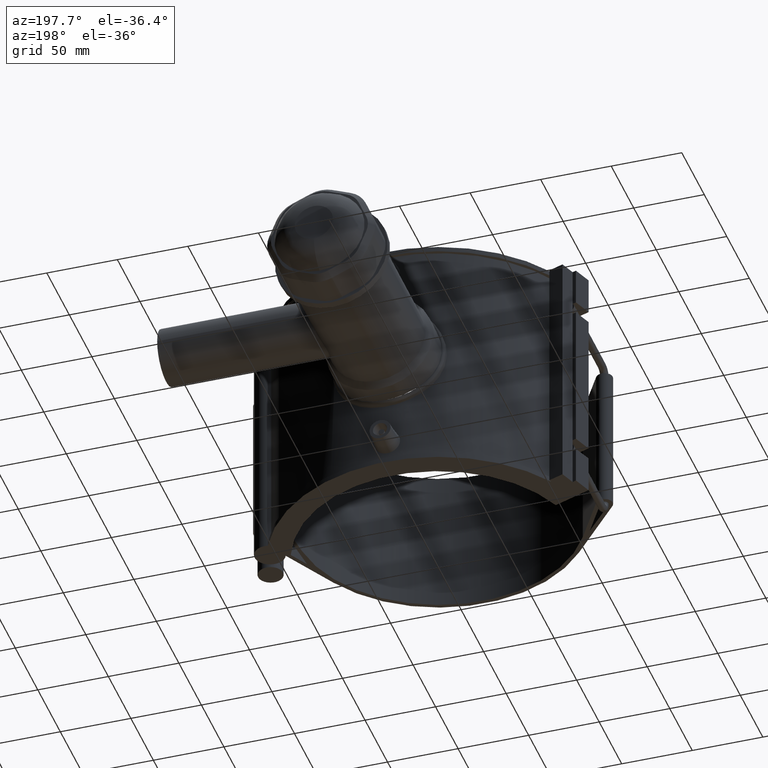
[diagram: clean part render]
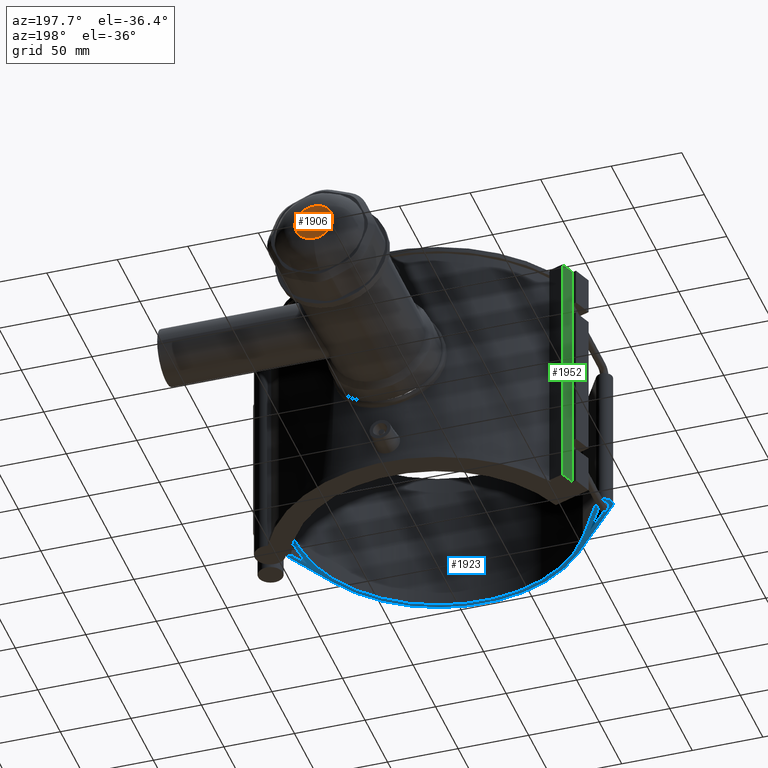
[diagram: same view with three faces highlighted in distinct colors, each labeled with its STEP entity id]
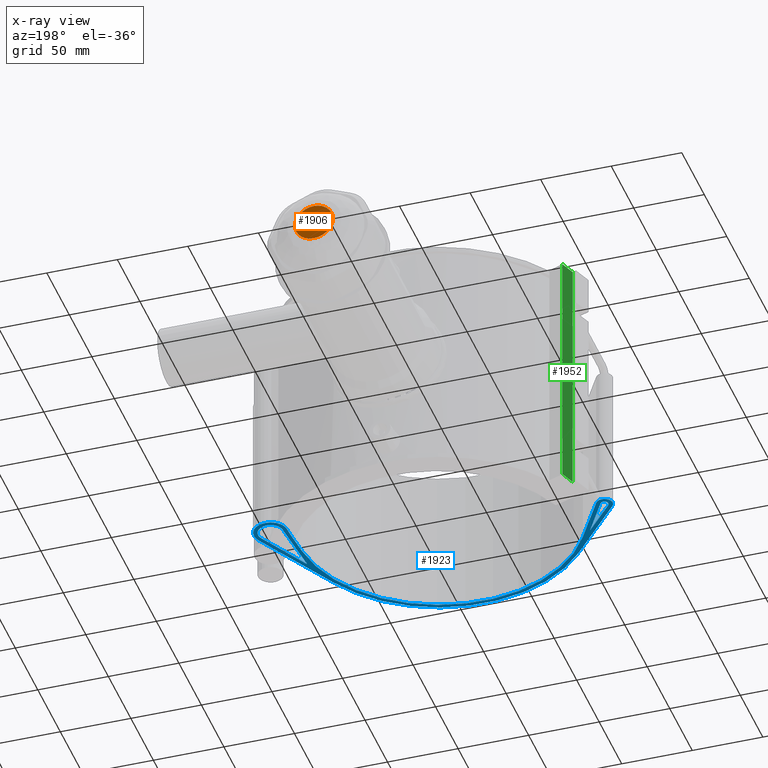
[diagram: x-ray of the same camera — body ghosted, the three highlighted faces saturated]
A machine part, auxiliary view with three faces highlighted in distinct colors.
The next image is the same camera in x-ray (body ghosted, the three faces saturated) — at least one of them is partly hidden behind the body in this view.
Their STEP definitions:

[orange] entity #1906 — the highlighted planar face has unit normal (0, 1, 0).
#485=FACE_OUTER_BOUND('',#614,.T.);
#614=EDGE_LOOP('',(#1397));
#759=CIRCLE('',#2054,13.5043815999573);
#870=VERTEX_POINT('',#3237);
#1072=EDGE_CURVE('',#870,#870,#759,.T.);
#1397=ORIENTED_EDGE('',*,*,#1072,.F.);
#1820=PLANE('',#2055);
#1906=ADVANCED_FACE('',(#485),#1820,.T.);
#2054=AXIS2_PLACEMENT_3D('',#3238,#2371,#2372);
#2055=AXIS2_PLACEMENT_3D('',#3242,#2373,#2374);
#2371=DIRECTION('center_axis',(0.,-1.,-3.06161699786838E-16));
#2372=DIRECTION('ref_axis',(-6.12323399573676E-17,-3.28848238301759E-16,
1.));
#2373=DIRECTION('center_axis',(0.,1.,3.06161699786838E-16));
#2374=DIRECTION('ref_axis',(0.,0.,1.));
#3237=CARTESIAN_POINT('',(2.48071465512781E-15,277.,-13.5043815999572));
#3238=CARTESIAN_POINT('Origin',(0.,277.,5.41906208622704E-14));
#3242=CARTESIAN_POINT('Origin',(0.,277.,5.41906208622704E-14));

[blue] entity #1923 — the highlighted planar face has unit normal (0, 0, 1).
#95=LINE('',#3321,#256);
#99=LINE('',#3329,#260);
#102=LINE('',#3340,#263);
#103=LINE('',#3344,#264);
#104=LINE('',#3348,#265);
#105=LINE('',#3352,#266);
#106=LINE('',#3358,#267);
#107=LINE('',#3359,#268);
#256=VECTOR('',#2430,42.3357405477701);
#260=VECTOR('',#2436,42.3357405477701);
#263=VECTOR('',#2445,69.8614012500134);
#264=VECTOR('',#2448,57.6362723718396);
#265=VECTOR('',#2451,39.7006283693455);
#266=VECTOR('',#2454,18.7376487946892);
#267=VECTOR('',#2459,31.6910839622462);
#268=VECTOR('',#2460,31.6910839622462);
#374=FACE_BOUND('',#637,.T.);
#375=FACE_BOUND('',#638,.T.);
#502=FACE_OUTER_BOUND('',#636,.T.);
#636=EDGE_LOOP('',(#1467,#1468,#1469,#1470,#1471,#1472,#1473,#1474,#1475,
#1476));
#637=EDGE_LOOP('',(#1477,#1478,#1479));
#638=EDGE_LOOP('',(#1480,#1481,#1482));
#767=CIRCLE('',#2080,11.8461538461538);
#768=CIRCLE('',#2081,11.8461538461538);
#769=CIRCLE('',#2082,103.);
#770=CIRCLE('',#2083,5.80000000000001);
#771=CIRCLE('',#2084,100.);
#772=CIRCLE('',#2085,100.);
#773=CIRCLE('',#2086,2.8);
#774=CIRCLE('',#2087,8.84615384615381);
#882=VERTEX_POINT('',#3319);
#883=VERTEX_POINT('',#3320);
#886=VERTEX_POINT('',#3328);
#888=VERTEX_POINT('',#3334);
#889=VERTEX_POINT('',#3335);
#890=VERTEX_POINT('',#3337);
#891=VERTEX_POINT('',#3339);
#892=VERTEX_POINT('',#3341);
#893=VERTEX_POINT('',#3343);
#894=VERTEX_POINT('',#3345);
#895=VERTEX_POINT('',#3347);
#896=VERTEX_POINT('',#3349);
#897=VERTEX_POINT('',#3351);
#898=VERTEX_POINT('',#3354);
#899=VERTEX_POINT('',#3355);
#900=VERTEX_POINT('',#3357);
#1095=EDGE_CURVE('',#882,#883,#95,.T.);
#1099=EDGE_CURVE('',#883,#886,#99,.T.);
#1102=EDGE_CURVE('',#888,#889,#767,.T.);
#1103=EDGE_CURVE('',#889,#890,#768,.T.);
#1104=EDGE_CURVE('',#890,#891,#102,.T.);
#1105=EDGE_CURVE('',#891,#892,#769,.T.);
#1106=EDGE_CURVE('',#892,#893,#103,.T.);
#1107=EDGE_CURVE('',#893,#894,#770,.T.);
#1108=EDGE_CURVE('',#894,#895,#104,.T.);
#1109=EDGE_CURVE('',#895,#896,#771,.T.);
#1110=EDGE_CURVE('',#896,#897,#105,.T.);
#1111=EDGE_CURVE('',#888,#897,#772,.T.);
#1112=EDGE_CURVE('',#898,#899,#773,.T.);
#1113=EDGE_CURVE('',#899,#900,#106,.T.);
#1114=EDGE_CURVE('',#900,#898,#107,.T.);
#1115=EDGE_CURVE('',#882,#886,#774,.T.);
#1467=ORIENTED_EDGE('',*,*,#1102,.T.);
#1468=ORIENTED_EDGE('',*,*,#1103,.T.);
#1469=ORIENTED_EDGE('',*,*,#1104,.T.);
#1470=ORIENTED_EDGE('',*,*,#1105,.T.);
#1471=ORIENTED_EDGE('',*,*,#1106,.T.);
#1472=ORIENTED_EDGE('',*,*,#1107,.T.);
#1473=ORIENTED_EDGE('',*,*,#1108,.T.);
#1474=ORIENTED_EDGE('',*,*,#1109,.T.);
#1475=ORIENTED_EDGE('',*,*,#1110,.T.);
#1476=ORIENTED_EDGE('',*,*,#1111,.F.);
#1477=ORIENTED_EDGE('',*,*,#1112,.T.);
#1478=ORIENTED_EDGE('',*,*,#1113,.T.);
#1479=ORIENTED_EDGE('',*,*,#1114,.T.);
#1480=ORIENTED_EDGE('',*,*,#1095,.T.);
#1481=ORIENTED_EDGE('',*,*,#1099,.T.);
#1482=ORIENTED_EDGE('',*,*,#1115,.F.);
#1829=PLANE('',#2079);
#1923=ADVANCED_FACE('',(#502,#374,#375),#1829,.F.);
#2079=AXIS2_PLACEMENT_3D('',#3333,#2439,#2440);
#2080=AXIS2_PLACEMENT_3D('',#3336,#2441,#2442);
#2081=AXIS2_PLACEMENT_3D('',#3338,#2443,#2444);
#2082=AXIS2_PLACEMENT_3D('',#3342,#2446,#2447);
#2083=AXIS2_PLACEMENT_3D('',#3346,#2449,#2450);
#2084=AXIS2_PLACEMENT_3D('',#3350,#2452,#2453);
#2085=AXIS2_PLACEMENT_3D('',#3353,#2455,#2456);
#2086=AXIS2_PLACEMENT_3D('',#3356,#2457,#2458);
#2087=AXIS2_PLACEMENT_3D('',#3360,#2461,#2462);
#2430=DIRECTION('',(-0.0905873526607487,-0.995888513608786,0.));
#2436=DIRECTION('',(0.481783564841131,0.876290246806942,0.));
#2439=DIRECTION('center_axis',(0.,0.,1.));
#2440=DIRECTION('ref_axis',(1.,0.,0.));
#2441=DIRECTION('center_axis',(0.,0.,-1.));
#2442=DIRECTION('ref_axis',(0.333937766224137,-0.942595124265574,0.));
#2443=DIRECTION('center_axis',(0.,0.,-1.));
#2444=DIRECTION('ref_axis',(0.333937766224137,-0.942595124265574,0.));
#2445=DIRECTION('',(-0.48178356484113,-0.876290246806943,0.));
#2446=DIRECTION('center_axis',(0.,0.,-1.));
#2447=DIRECTION('ref_axis',(0.988586012507429,0.150657545030644,0.));
#2448=DIRECTION('',(-0.654222560450905,0.756302083427689,0.));
#2449=DIRECTION('center_axis',(0.,0.,-1.));
#2450=DIRECTION('ref_axis',(-1.,0.,0.));
#2451=DIRECTION('',(0.511479804338621,-0.859295298342617,0.));
#2452=DIRECTION('center_axis',(0.,0.,1.));
#2453=DIRECTION('ref_axis',(0.859295298342617,0.511479804338621,0.));
#2454=DIRECTION('',(0.0905873526607489,0.995888513608786,0.));
#2455=DIRECTION('center_axis',(0.,0.,-1.));
#2456=DIRECTION('ref_axis',(0.998677892414806,-0.0514049336340508,0.));
#2457=DIRECTION('center_axis',(0.,0.,1.));
#2458=DIRECTION('ref_axis',(0.,-1.,0.));
#2459=DIRECTION('',(0.654222560450906,-0.756302083427688,0.));
#2460=DIRECTION('',(-0.511479804338621,0.859295298342617,0.));
#2461=DIRECTION('center_axis',(0.,0.,-1.));
#2462=DIRECTION('ref_axis',(1.,0.,0.));
#3319=CARTESIAN_POINT('',(104.725518277583,18.1037892528259,-52.8));
#3320=CARTESIAN_POINT('',(100.890435618428,-24.05788847382,-52.8));
#3321=CARTESIAN_POINT('',(98.9305788539803,-45.6039297555643,-52.8));
#3328=CARTESIAN_POINT('',(121.287099619722,13.0405080595401,-52.8));
#3329=CARTESIAN_POINT('',(93.0910545803784,-38.2437636956699,-52.8));
#3333=CARTESIAN_POINT('Origin',(9.76503148421383,-59.2176246542159,-52.8));
#3334=CARTESIAN_POINT('',(101.690020868822,17.4462897461497,-52.8));
#3335=CARTESIAN_POINT('',(110.177502823399,28.6627455084343,-52.8));
#3336=CARTESIAN_POINT('Origin',(113.535301282584,17.3024395946731,-52.8));
#3337=CARTESIAN_POINT('',(123.915970360143,11.5951573650167,-52.8));
#3338=CARTESIAN_POINT('Origin',(113.535301282584,17.3024395946731,-52.8));
#3339=CARTESIAN_POINT('',(90.2578954211151,-49.6237071786365,-52.8));
#3340=CARTESIAN_POINT('',(90.2578954211151,-49.6237071786365,-52.8));
#3341=CARTESIAN_POINT('',(-77.8991145930519,-67.3849237264432,-52.8));
#3342=CARTESIAN_POINT('Origin',(0.,0.,-52.8));
#3343=CARTESIAN_POINT('',(-115.606064279003,-23.7944908506153,-52.8));
#3344=CARTESIAN_POINT('',(-115.606064279003,-23.7944908506153,-52.8));
#3345=CARTESIAN_POINT('',(-106.235599464735,-17.033417134836,-52.8));
#3346=CARTESIAN_POINT('Origin',(-111.219512195122,-20.,-52.8));
#3347=CARTESIAN_POINT('',(-85.9295298342617,-51.1479804338621,-52.8));
#3348=CARTESIAN_POINT('',(-85.9295298342617,-51.1479804338621,-52.8));
#3349=CARTESIAN_POINT('',(99.5888513608786,-9.05873526607498,-52.8));
#3350=CARTESIAN_POINT('Origin',(0.,0.,-52.8));
#3351=CARTESIAN_POINT('',(101.286245360276,9.60187394059154,-52.8));
#3352=CARTESIAN_POINT('',(101.824359288265,15.5177271381563,-52.8));
#3353=CARTESIAN_POINT('Origin',(1.69739399939777,18.6606092066664,-52.8));
#3354=CARTESIAN_POINT('',(-108.813485359763,-18.5678565478519,-52.8));
#3355=CARTESIAN_POINT('',(-113.337158028719,-21.8318231692625,-52.8));
#3356=CARTESIAN_POINT('Origin',(-111.219512195122,-20.,-52.8));
#3357=CARTESIAN_POINT('',(-92.6041359354741,-45.7998559959911,-52.8));
#3358=CARTESIAN_POINT('',(-77.7437906351754,-62.9788877055131,-52.8));
#3359=CARTESIAN_POINT('',(-76.265019143956,-73.2498669620689,-52.8));
#3360=CARTESIAN_POINT('Origin',(113.535301282584,17.3024395946731,-52.8));

[green] entity #1952 — the highlighted planar face has unit normal (-0.9397, 0.342, 0).
#116=LINE('',#3414,#277);
#117=LINE('',#3418,#278);
#127=LINE('',#3460,#288);
#128=LINE('',#3462,#289);
#130=LINE('',#3466,#291);
#148=LINE('',#3509,#309);
#152=LINE('',#3522,#313);
#155=LINE('',#3527,#316);
#174=LINE('',#3564,#335);
#175=LINE('',#3567,#336);
#176=LINE('',#3569,#337);
#177=LINE('',#3570,#338);
#277=VECTOR('',#2503,4.53640788952946);
#278=VECTOR('',#2506,4.53640788952949);
#288=VECTOR('',#2538,3.69179605523528);
#289=VECTOR('',#2541,0.17179605523526);
#291=VECTOR('',#2545,0.171796055235252);
#309=VECTOR('',#2585,3.69179605523522);
#313=VECTOR('',#2601,26.6);
#316=VECTOR('',#2606,106.);
#335=VECTOR('',#2637,26.6);
#336=VECTOR('',#2640,11.2);
#337=VECTOR('',#2641,176.);
#338=VECTOR('',#2642,11.2);
#531=FACE_OUTER_BOUND('',#673,.T.);
#673=EDGE_LOOP('',(#1635,#1636,#1637,#1638,#1639,#1640,#1641,#1642,#1643,
#1644,#1645,#1646));
#919=VERTEX_POINT('',#3406);
#920=VERTEX_POINT('',#3408);
#922=VERTEX_POINT('',#3416);
#923=VERTEX_POINT('',#3417);
#931=VERTEX_POINT('',#3446);
#936=VERTEX_POINT('',#3458);
#937=VERTEX_POINT('',#3464);
#951=VERTEX_POINT('',#3505);
#954=VERTEX_POINT('',#3521);
#967=VERTEX_POINT('',#3562);
#968=VERTEX_POINT('',#3566);
#969=VERTEX_POINT('',#3568);
#1138=EDGE_CURVE('',#920,#919,#116,.T.);
#1139=EDGE_CURVE('',#922,#923,#117,.T.);
#1157=EDGE_CURVE('',#919,#936,#127,.T.);
#1158=EDGE_CURVE('',#931,#920,#128,.T.);
#1160=EDGE_CURVE('',#923,#937,#130,.T.);
#1182=EDGE_CURVE('',#951,#922,#148,.T.);
#1188=EDGE_CURVE('',#954,#931,#152,.T.);
#1191=EDGE_CURVE('',#936,#951,#155,.T.);
#1210=EDGE_CURVE('',#937,#967,#174,.T.);
#1211=EDGE_CURVE('',#967,#968,#175,.T.);
#1212=EDGE_CURVE('',#969,#968,#176,.T.);
#1213=EDGE_CURVE('',#954,#969,#177,.T.);
#1635=ORIENTED_EDGE('',*,*,#1211,.T.);
#1636=ORIENTED_EDGE('',*,*,#1212,.F.);
#1637=ORIENTED_EDGE('',*,*,#1213,.F.);
#1638=ORIENTED_EDGE('',*,*,#1188,.T.);
#1639=ORIENTED_EDGE('',*,*,#1158,.T.);
#1640=ORIENTED_EDGE('',*,*,#1138,.T.);
#1641=ORIENTED_EDGE('',*,*,#1157,.T.);
#1642=ORIENTED_EDGE('',*,*,#1191,.T.);
#1643=ORIENTED_EDGE('',*,*,#1182,.T.);
#1644=ORIENTED_EDGE('',*,*,#1139,.T.);
#1645=ORIENTED_EDGE('',*,*,#1160,.T.);
#1646=ORIENTED_EDGE('',*,*,#1210,.T.);
#1852=PLANE('',#2142);
#1952=ADVANCED_FACE('',(#531),#1852,.T.);
#2142=AXIS2_PLACEMENT_3D('',#3565,#2638,#2639);
#2503=DIRECTION('',(0.,0.,1.));
#2506=DIRECTION('',(0.,0.,1.));
#2538=DIRECTION('',(0.,0.,1.));
#2541=DIRECTION('',(0.,0.,1.));
#2545=DIRECTION('',(0.,0.,1.));
#2585=DIRECTION('',(0.,0.,1.));
#2601=DIRECTION('',(0.,0.,1.));
#2606=DIRECTION('',(0.,0.,1.));
#2637=DIRECTION('',(0.,0.,1.));
#2638=DIRECTION('center_axis',(-0.939692620785908,0.34202014332567,0.));
#2639=DIRECTION('ref_axis',(-0.342020143325671,-0.939692620785908,0.));
#2640=DIRECTION('',(0.34202014332567,0.939692620785908,0.));
#2641=DIRECTION('',(0.,0.,1.));
#2642=DIRECTION('',(0.34202014332567,0.939692620785908,0.));
#3406=CARTESIAN_POINT('',(-112.861234115836,55.9766186353763,-56.6917960552353));
#3408=CARTESIAN_POINT('',(-112.861234115836,55.9766186353763,-61.2282039447647));
#3414=CARTESIAN_POINT('',(-112.861234115836,55.9766186353764,-88.));
#3416=CARTESIAN_POINT('',(-112.861234115836,55.9766186353764,56.6917960552353));
#3417=CARTESIAN_POINT('',(-112.861234115836,55.9766186353764,61.2282039447647));
#3418=CARTESIAN_POINT('',(-112.861234115836,55.9766186353764,-88.));
#3446=CARTESIAN_POINT('',(-112.861234115836,55.9766186353764,-61.4));
#3458=CARTESIAN_POINT('',(-112.861234115836,55.9766186353764,-53.));
#3460=CARTESIAN_POINT('',(-112.861234115836,55.9766186353764,-88.));
#3462=CARTESIAN_POINT('',(-112.861234115836,55.9766186353764,-88.));
#3464=CARTESIAN_POINT('',(-112.861234115836,55.9766186353764,61.4));
#3466=CARTESIAN_POINT('',(-112.861234115836,55.9766186353764,-88.));
#3505=CARTESIAN_POINT('',(-112.861234115836,55.9766186353764,53.));
#3509=CARTESIAN_POINT('',(-112.861234115836,55.9766186353764,-88.));
#3521=CARTESIAN_POINT('',(-112.861234115836,55.9766186353764,-88.));
#3522=CARTESIAN_POINT('',(-112.861234115836,55.9766186353764,-88.));
#3527=CARTESIAN_POINT('',(-112.861234115836,55.9766186353764,-88.));
#3562=CARTESIAN_POINT('',(-112.861234115836,55.9766186353764,88.));
#3564=CARTESIAN_POINT('',(-112.861234115836,55.9766186353764,-88.));
#3565=CARTESIAN_POINT('Origin',(-109.030608510589,66.5011759881785,-88.));
#3566=CARTESIAN_POINT('',(-109.030608510589,66.5011759881785,88.));
#3567=CARTESIAN_POINT('',(-111.374306140513,60.0619196719329,88.));
#3568=CARTESIAN_POINT('',(-109.030608510589,66.5011759881785,-88.));
#3569=CARTESIAN_POINT('',(-109.030608510589,66.5011759881785,-88.));
#3570=CARTESIAN_POINT('',(-112.861234115836,55.9766186353764,-88.));